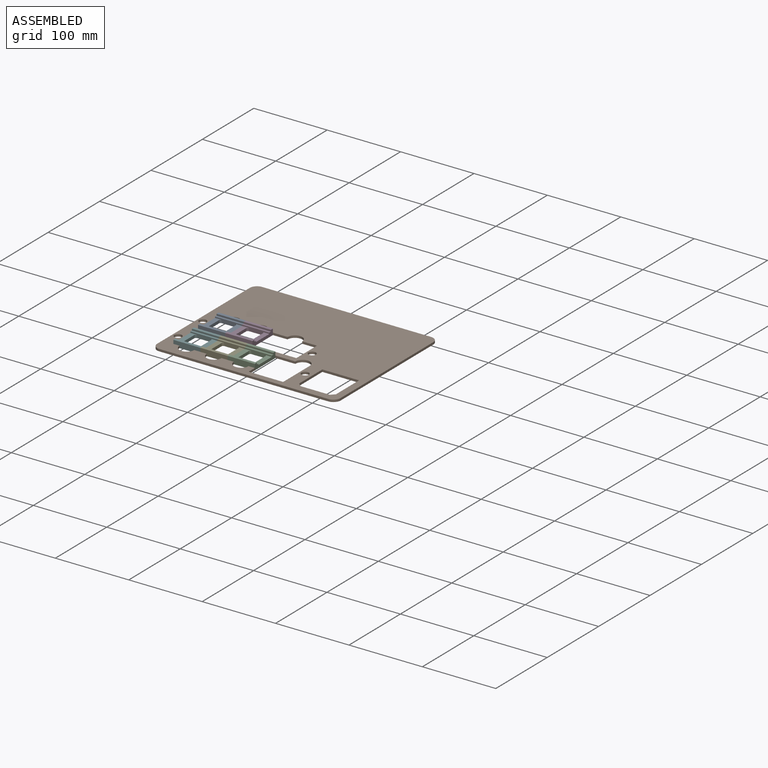
[diagram: assembled view]
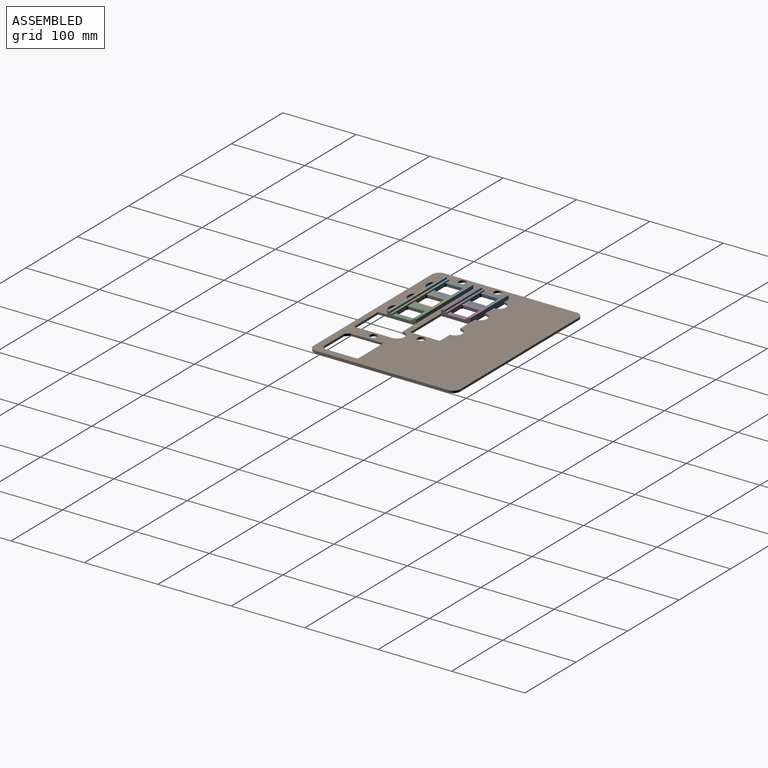
[diagram: assembled view, second angle]
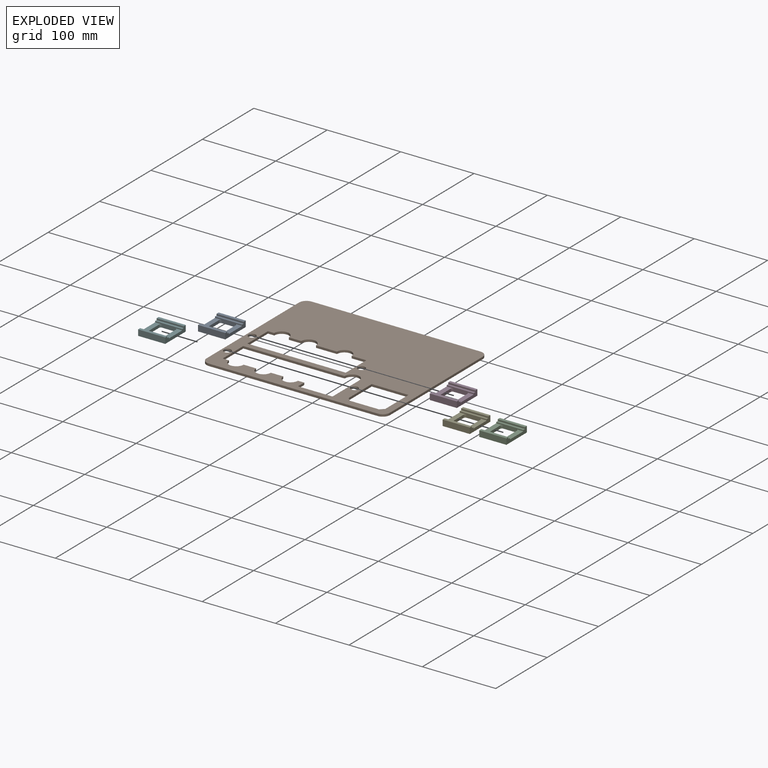
[diagram: exploded view]
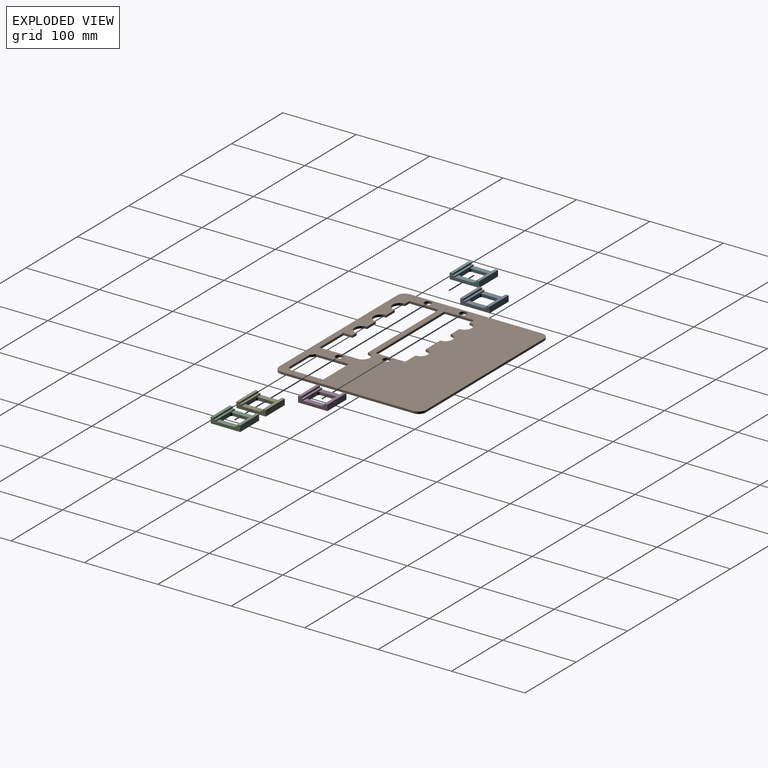
[diagram: exploded view, second angle]
ASSEMBLY  parts=6 mates=5
PART A: 21 faces, bbox 40x37x8 mm
  f0: plane 26.1x9.5mm, normal (0,0,1), area 185.4mm2, adj f6,f8,f14,f16,f18,f19
  f1: plane 40x37mm, normal (0,0,-1), area 885mm2, adj f2,f6,f8,f9,f10,f14,f15,f16
  f2: plane 37x8mm, normal (1,0,0), area 296mm2, adj f1,f3,f8,f9
  f3: plane 37x4mm, normal (0,0,1), area 148mm2, adj f2,f4,f8,f9
  f4: plane 37x2.3mm, normal (-1,0,0), area 85.1mm2, adj f3,f5,f8,f9
  f5: plane 37x2.95mm, normal (0,0,1), area 109.1mm2, adj f4,f6,f8,f9
  f6: plane 37x5.7mm, normal (-1,0,0), area 134.9mm2, adj f0,f1,f5,f7,f8,f9,f19,f20
  f7: plane 26.1x9.5mm, normal (0,0,1), area 185.4mm2, adj f6,f9,f14,f15,f17,f20
  f8: plane 40x8mm, normal (0,-1,0), area 202mm2, adj f0,f1,f2,f3,f4,f5,f6,f10
  f9: plane 40x8mm, normal (0,1,0), area 202mm2, adj f1,f2,f3,f4,f5,f6,f7,f10
  f10: plane 37x8mm, normal (-1,0,0), area 296mm2, adj f1,f8,f9,f11
  f11: plane 37x4mm, normal (0,0,1), area 148mm2, adj f8,f9,f10,f12
  f12: plane 37x2.3mm, normal (1,0,0), area 85.1mm2, adj f8,f9,f11,f13
  f13: plane 37x2.95mm, normal (0,0,1), area 109.1mm2, adj f8,f9,f12,f14
  f14: plane 37x5.7mm, normal (1,0,0), area 134.9mm2, adj f0,f1,f7,f8,f9,f13,f17,f18
  f15: plane 21.1x4mm, normal (0,-1,0), area 84.4mm2, adj f1,f7,f17,f20
  f16: plane 21.1x4mm, normal (0,1,0), area 84.4mm2, adj f0,f1,f18,f19
  f17: cylinder r=2.5mm len=4mm, axis (0,0,1), area 15.7mm2, adj f1,f7,f14,f15
  f18: cylinder r=2.5mm len=4mm, axis (0,0,-1), area 15.7mm2, adj f0,f1,f14,f16
  f19: cylinder r=2.5mm len=4mm, axis (0,0,-1), area 15.7mm2, adj f0,f1,f6,f16
  f20: cylinder r=2.5mm len=4mm, axis (0,0,1), area 15.7mm2, adj f1,f6,f7,f15
PART B: 43 faces, bbox 250x200x3 mm
  f0: plane 250x200mm, normal (0,0,1), area 33781.4mm2, adj f2,f3,f4,f5,f6,f7,f8,f9
  f1: plane 250x200mm, normal (0,0,-1), area 33781.4mm2, adj f2,f3,f4,f5,f6,f7,f8,f9
  f2: plane 230x3mm, normal (0,1,0), area 690mm2, adj f0,f1,f3,f9
  f3: cylinder r=10mm len=10mm, axis (0,0,-1), area 47.1mm2, adj f0,f1,f2,f4
  f4: plane 180x3mm, normal (-1,0,0), area 540mm2, adj f0,f1,f3,f5
  f5: cylinder r=10mm len=10mm, axis (0,0,-1), area 47.1mm2, adj f0,f1,f4,f6
  f6: plane 230x3mm, normal (0,-1,0), area 690mm2, adj f0,f1,f5,f7
  f7: cylinder r=10mm len=10mm, axis (0,0,-1), area 47.1mm2, adj f0,f1,f6,f8
  f8: plane 180x3mm, normal (1,0,0), area 540mm2, adj f0,f1,f7,f9
  f9: cylinder r=10mm len=10mm, axis (0,0,-1), area 47.1mm2, adj f0,f1,f2,f8
  f10: cylinder r=5mm len=10mm, axis (0,0,1), area 94.2mm2, adj f0,f1
  f11: cylinder r=10mm len=20mm, axis (0,0,1), area 94.2mm2, adj f0,f1,f12,f20
  f12: plane 17x3mm, normal (0,-1,0), area 51mm2, adj f0,f1,f11,f13
  f13: cylinder r=10mm len=20mm, axis (0,0,1), area 94.2mm2, adj f0,f1,f12,f14
  f14: plane 8.5x3mm, normal (0,-1,0), area 25.5mm2, adj f0,f1,f13,f15
  f15: plane 40x3mm, normal (1,0,0), area 120mm2, adj f0,f1,f14,f16
  f16: plane 134x3mm, normal (0,1,0), area 402mm2, adj f0,f1,f15,f17
  f17: plane 40x3mm, normal (-1,0,0), area 120mm2, adj f0,f1,f16,f18
  f18: plane 20x3mm, normal (0,-1,0), area 60mm2, adj f0,f1,f17,f19
  f19: cylinder r=10mm len=20mm, axis (0,0,1), area 94.2mm2, adj f0,f1,f18,f20
  f20: plane 28.5x3mm, normal (0,-1,0), area 85.5mm2, adj f0,f1,f11,f19
  f21: cylinder r=5mm len=10mm, axis (0,0,1), area 94.2mm2, adj f0,f1
  f22: cylinder r=5mm len=10mm, axis (0,0,1), area 94.2mm2, adj f0,f1
  f23: cylinder r=5mm len=10mm, axis (0,0,1), area 94.2mm2, adj f0,f1
  f24: cylinder r=10mm len=20mm, axis (0,0,1), area 94.2mm2, adj f0,f1,f25,f36
  f25: plane 17x3mm, normal (0,1,0), area 51mm2, adj f0,f1,f24,f26
  f26: cylinder r=10mm len=20mm, axis (0,0,1), area 94.2mm2, adj f0,f1,f25,f27
  f27: plane 8.5x3mm, normal (0,1,0), area 25.5mm2, adj f0,f1,f26,f28
  f28: plane 12x3mm, normal (1,0,0), area 36mm2, adj f0,f1,f27,f29
  f29: plane 47x3mm, normal (0,1,0), area 141mm2, adj f0,f1,f28,f30
  f30: plane 52x3mm, normal (-1,0,0), area 156mm2, adj f0,f1,f29,f31
  f31: cylinder r=10mm len=20mm, axis (0,0,1), area 94.2mm2, adj f0,f1,f30,f32
  f32: plane 138x3mm, normal (0,-1,0), area 414mm2, adj f0,f1,f31,f33
  f33: plane 40x3mm, normal (1,0,0), area 120mm2, adj f0,f1,f32,f34
  f34: plane 8.5x3mm, normal (0,1,0), area 25.5mm2, adj f0,f1,f33,f35
  f35: cylinder r=10mm len=20mm, axis (0,0,1), area 94.2mm2, adj f0,f1,f34,f36
  f36: plane 17x3mm, normal (0,1,0), area 51mm2, adj f0,f1,f24,f35
  f37: plane 50x3mm, normal (0,-1,0), area 150mm2, adj f0,f1,f38,f40
  f38: plane 45x3mm, normal (1,0,0), area 135mm2, adj f0,f1,f37,f41
  f39: plane 40x3mm, normal (0,1,0), area 120mm2, adj f0,f1,f41,f42
  f40: plane 45x3mm, normal (-1,0,0), area 135mm2, adj f0,f1,f37,f42
  f41: plane 5x5mm, normal (0.71,0.71,0), area 21.2mm2, adj f0,f1,f38,f39
  f42: plane 5x5mm, normal (-0.71,0.71,0), area 21.2mm2, adj f0,f1,f39,f40
PART C: same geometry as A
PART D: same geometry as A
PART E: same geometry as A
PART F: same geometry as A
PLACE A rot(axis=(0,0,1),90deg) t=(-59.79,25.81,11.72)mm
PLACE B t=(-74.79,-62.19,11.72)mm
PLACE C rot(axis=(0,0,-1),90deg) t=(51.21,-22.19,11.72)mm
PLACE D rot(axis=(0,0,-1),90deg) t=(14.21,25.81,11.72)mm
PLACE E rot(axis=(0,0,-1),90deg) t=(14.21,-22.19,11.72)mm
PLACE F rot(axis=(0,0,1),90deg) t=(-59.79,-22.19,11.72)mm
MATE fastened F.f9 <-> B.f33  axis (-1,0,0) through (-59.79,-2.19,11.72)mm
MATE fastened A.f9 <-> B.f15  axis (-1,0,0) through (-59.79,45.81,11.72)mm
MATE fastened C.f8 <-> E.f9  axis (-1,0,0) through (14.21,-2.19,11.72)mm
MATE fastened D.f8 <-> A.f8  axis (-1,0,0) through (-22.79,45.81,11.72)mm
MATE fastened E.f8 <-> F.f8  axis (-1,0,0) through (-22.79,-2.19,11.72)mm
